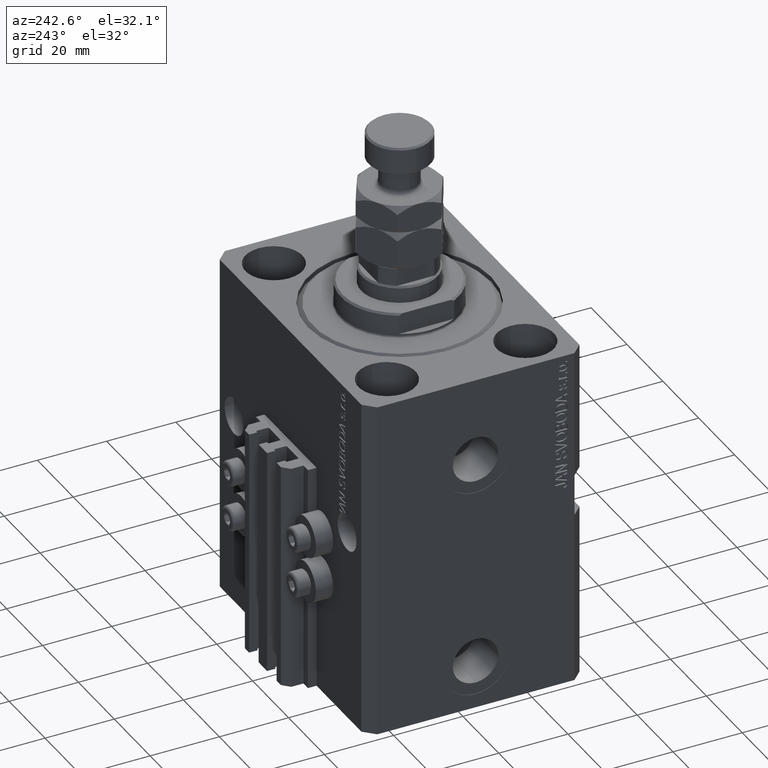
[diagram: clean part render]
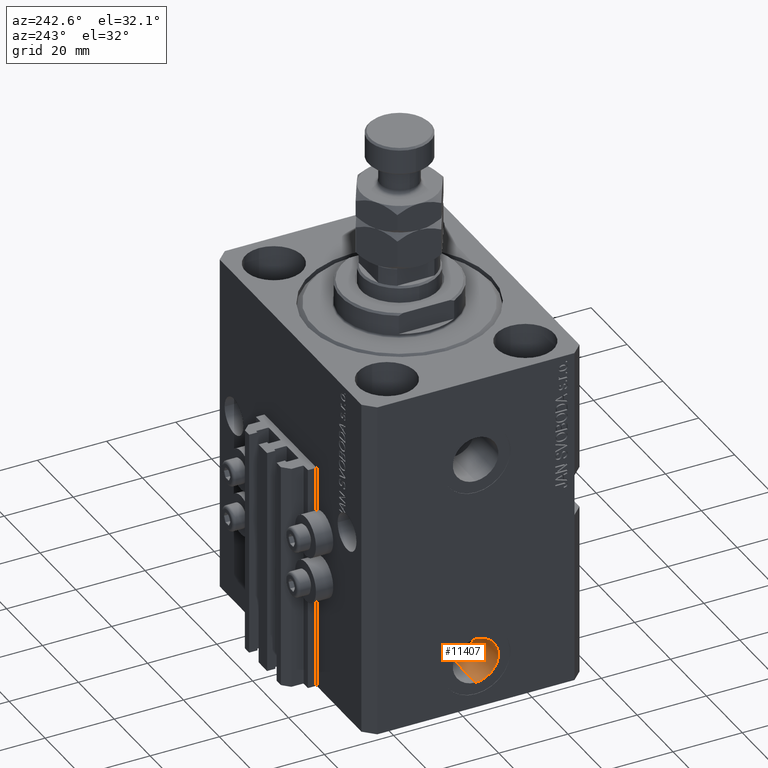
[diagram: same view with one face highlighted and labeled with its STEP entity id]
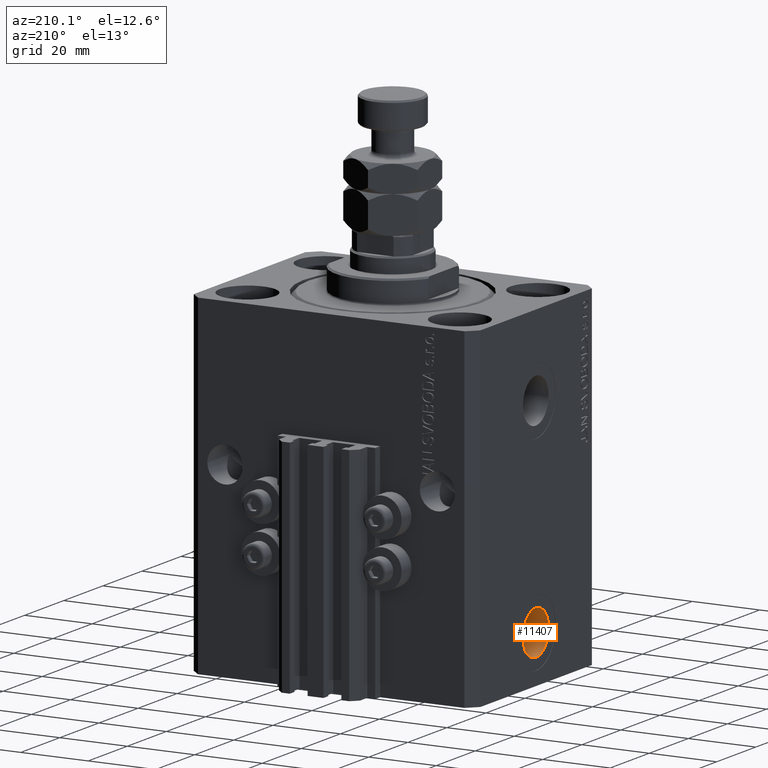
[diagram: same view with one face highlighted and labeled with its STEP entity id]
A machine part, auxiliary view. The second image highlights one B-rep face of the part: STEP entity #11407.
A second angle (auxiliary view) of the same face is appended — the face is thin or edge-on in the first view.
In plain terms, the highlighted cylindrical surface (edge-blend (fillet) strip) has radius 6.58 mm, axis along (-1, -0, -0).
Its self-contained STEP definition (entity closure, byte-faithful):
#2502 = AXIS2_PLACEMENT_3D ( 'NONE', #9462, #40586, #14455 ) ;
#2685 = VERTEX_POINT ( 'NONE', #19433 ) ;
#2747 = CIRCLE ( 'NONE', #43304, 6.580000000000002736 ) ;
#3176 = CARTESIAN_POINT ( 'NONE',  ( -29.40000000000000213, -1.040949779275250179E-14, -85.00000000000000000 ) ) ;
#5122 = DIRECTION ( 'NONE',  ( -1.000000000000000000, -0.000000000000000000, -0.000000000000000000 ) ) ;
#5544 = EDGE_CURVE ( 'NONE', #2685, #24338, #2747, .T. ) ;
#7163 = DIRECTION ( 'NONE',  ( 0.000000000000000000, 0.000000000000000000, 1.000000000000000000 ) ) ;
#9462 = CARTESIAN_POINT ( 'NONE',  ( -29.40000000000000213, -1.040949779275250179E-14, -85.00000000000000000 ) ) ;
#11407 = ADVANCED_FACE ( 'NONE', ( #14400 ), #37282, .F. ) ;
#14400 = FACE_OUTER_BOUND ( 'NONE', #19160, .T. ) ;
#14455 = DIRECTION ( 'NONE',  ( 0.000000000000000000, 0.000000000000000000, 1.000000000000000000 ) ) ;
#15470 = CARTESIAN_POINT ( 'NONE',  ( -42.39999999999999858, -1.040949779275250179E-14, -78.42000000000000171 ) ) ;
#15894 = VERTEX_POINT ( 'NONE', #17319 ) ;
#17319 = CARTESIAN_POINT ( 'NONE',  ( -29.40000000000000213, -1.040949779275250179E-14, -78.42000000000000171 ) ) ;
#18208 = EDGE_CURVE ( 'NONE', #15894, #24338, #31273, .T. ) ;
#18648 = ORIENTED_EDGE ( 'NONE', *, *, #43531, .F. ) ;
#18673 = CARTESIAN_POINT ( 'NONE',  ( -29.40000000000000213, -9.603680198913542751E-15, -91.58000000000001251 ) ) ;
#19160 = EDGE_LOOP ( 'NONE', ( #18648, #27855, #44035, #21061 ) ) ;
#19433 = CARTESIAN_POINT ( 'NONE',  ( -42.39999999999999858, -9.603680198913542751E-15, -91.58000000000001251 ) ) ;
#21005 = LINE ( 'NONE', #36184, #30967 ) ;
#21061 = ORIENTED_EDGE ( 'NONE', *, *, #18208, .F. ) ;
#22479 = DIRECTION ( 'NONE',  ( 0.000000000000000000, 0.000000000000000000, 1.000000000000000000 ) ) ;
#24338 = VERTEX_POINT ( 'NONE', #15470 ) ;
#26885 = EDGE_CURVE ( 'NONE', #32179, #2685, #21005, .T. ) ;
#27855 = ORIENTED_EDGE ( 'NONE', *, *, #26885, .T. ) ;
#29070 = DIRECTION ( 'NONE',  ( -1.000000000000000000, -0.000000000000000000, -0.000000000000000000 ) ) ;
#30967 = VECTOR ( 'NONE', #35933, 1000.000000000000000 ) ;
#31273 = LINE ( 'NONE', #46234, #48193 ) ;
#32108 = AXIS2_PLACEMENT_3D ( 'NONE', #3176, #29070, #7163 ) ;
#32179 = VERTEX_POINT ( 'NONE', #18673 ) ;
#35897 = CIRCLE ( 'NONE', #2502, 6.580000000000002736 ) ;
#35933 = DIRECTION ( 'NONE',  ( -1.000000000000000000, -0.000000000000000000, -0.000000000000000000 ) ) ;
#36184 = CARTESIAN_POINT ( 'NONE',  ( -29.40000000000000213, -9.603680198913542751E-15, -91.58000000000001251 ) ) ;
#37282 = CYLINDRICAL_SURFACE ( 'NONE', #32108, 6.580000000000002736 ) ;
#37656 = DIRECTION ( 'NONE',  ( -1.000000000000000000, 0.000000000000000000, 0.000000000000000000 ) ) ;
#40586 = DIRECTION ( 'NONE',  ( -1.000000000000000000, 0.000000000000000000, 0.000000000000000000 ) ) ;
#43304 = AXIS2_PLACEMENT_3D ( 'NONE', #45138, #37656, #22479 ) ;
#43531 = EDGE_CURVE ( 'NONE', #32179, #15894, #35897, .T. ) ;
#44035 = ORIENTED_EDGE ( 'NONE', *, *, #5544, .T. ) ;
#45138 = CARTESIAN_POINT ( 'NONE',  ( -42.39999999999999858, -1.040949779275250179E-14, -85.00000000000000000 ) ) ;
#46234 = CARTESIAN_POINT ( 'NONE',  ( -29.40000000000000213, -1.040949779275250179E-14, -78.42000000000000171 ) ) ;
#48193 = VECTOR ( 'NONE', #5122, 1000.000000000000000 ) ;